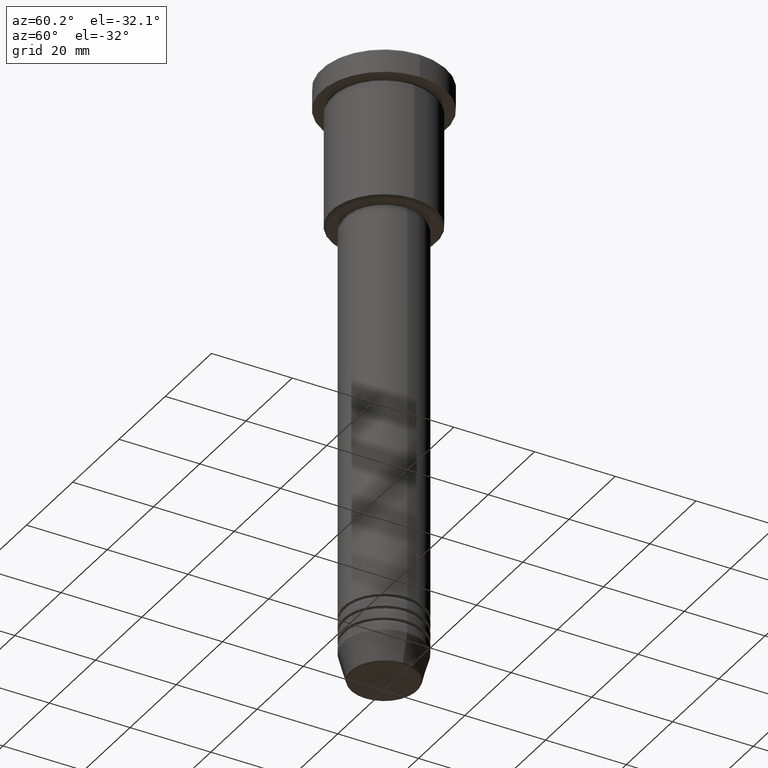
[diagram: clean part render]
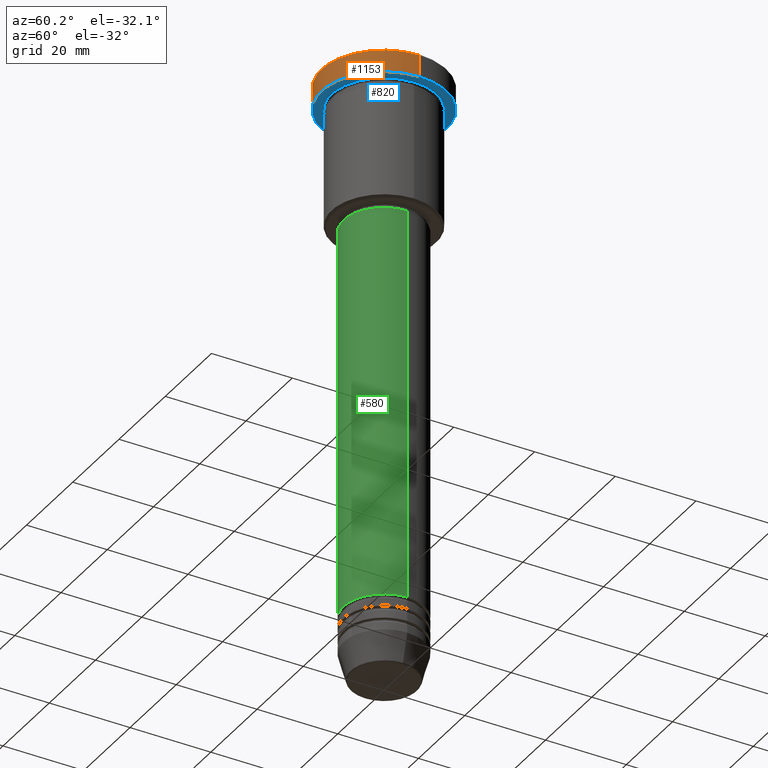
[diagram: same view with three faces highlighted in distinct colors, each labeled with its STEP entity id]
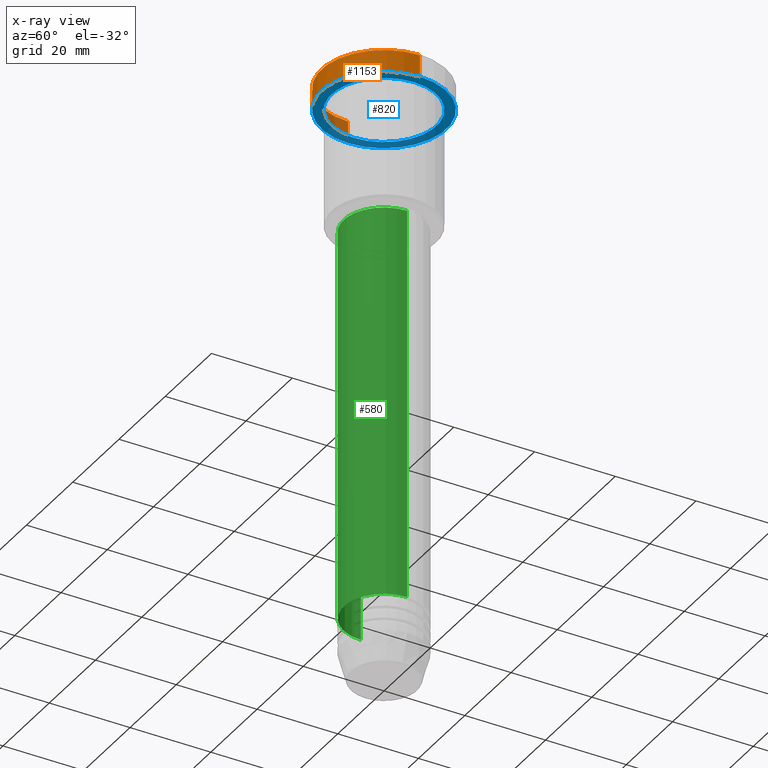
[diagram: x-ray of the same camera — body ghosted, the three highlighted faces saturated]
A machine part, auxiliary view with three faces highlighted in distinct colors.
The next image is the same camera in x-ray (body ghosted, the three faces saturated) — at least one of them is partly hidden behind the body in this view.
Their STEP definitions:

[orange] entity #1153 — the highlighted cylindrical surface (partial cylindrical patch) has radius 15.5 mm, axis along (-0, -0, 1).
#69 = EDGE_CURVE ( 'NONE', #930, #1143, #963, .T. ) ;
#70 = DIRECTION ( 'NONE',  ( 1.000000000000000000, 0.000000000000000000, 0.000000000000000000 ) ) ;
#127 = CIRCLE ( 'NONE', #856, 15.50000000000000000 ) ;
#147 = CIRCLE ( 'NONE', #659, 15.50000000000000000 ) ;
#161 = CYLINDRICAL_SURFACE ( 'NONE', #968, 15.50000000000000000 ) ;
#175 = DIRECTION ( 'NONE',  ( 0.000000000000000000, 0.000000000000000000, -1.000000000000000000 ) ) ;
#283 = VECTOR ( 'NONE', #1071, 1000.000000000000000 ) ;
#301 = CARTESIAN_POINT ( 'NONE',  ( -15.50000000000000000, 1.898202538678397557E-15, 0.000000000000000000 ) ) ;
#328 = EDGE_LOOP ( 'NONE', ( #512, #821, #361, #1170 ) ) ;
#361 = ORIENTED_EDGE ( 'NONE', *, *, #69, .T. ) ;
#415 = CARTESIAN_POINT ( 'NONE',  ( 15.50000000000000000, 0.000000000000000000, -5.999999999999995559 ) ) ;
#425 = DIRECTION ( 'NONE',  ( -0.000000000000000000, -0.000000000000000000, 1.000000000000000000 ) ) ;
#466 = CARTESIAN_POINT ( 'NONE',  ( -15.50000000000000000, 1.898202538678397557E-15, -0.5000000000000264233 ) ) ;
#500 = CARTESIAN_POINT ( 'NONE',  ( 15.50000000000000000, 0.000000000000000000, 0.000000000000000000 ) ) ;
#512 = ORIENTED_EDGE ( 'NONE', *, *, #1002, .F. ) ;
#536 = CARTESIAN_POINT ( 'NONE',  ( 0.000000000000000000, 0.000000000000000000, 0.000000000000000000 ) ) ;
#539 = CARTESIAN_POINT ( 'NONE',  ( 0.000000000000000000, 0.000000000000000000, -5.999999999999995559 ) ) ;
#581 = DIRECTION ( 'NONE',  ( -0.000000000000000000, -0.000000000000000000, 1.000000000000000000 ) ) ;
#606 = EDGE_CURVE ( 'NONE', #1149, #930, #147, .T. ) ;
#631 = DIRECTION ( 'NONE',  ( 1.000000000000000000, 0.000000000000000000, 0.000000000000000000 ) ) ;
#635 = CARTESIAN_POINT ( 'NONE',  ( -15.50000000000000000, 1.898202538678397557E-15, -5.999999999999995559 ) ) ;
#659 = AXIS2_PLACEMENT_3D ( 'NONE', #539, #425, #631 ) ;
#731 = VERTEX_POINT ( 'NONE', #466 ) ;
#761 = LINE ( 'NONE', #301, #878 ) ;
#809 = EDGE_CURVE ( 'NONE', #1143, #731, #127, .T. ) ;
#821 = ORIENTED_EDGE ( 'NONE', *, *, #606, .T. ) ;
#851 = CARTESIAN_POINT ( 'NONE',  ( 0.000000000000000000, 0.000000000000000000, -0.5000000000000264233 ) ) ;
#856 = AXIS2_PLACEMENT_3D ( 'NONE', #851, #175, #1005 ) ;
#878 = VECTOR ( 'NONE', #581, 1000.000000000000000 ) ;
#915 = DIRECTION ( 'NONE',  ( -0.000000000000000000, -0.000000000000000000, 1.000000000000000000 ) ) ;
#930 = VERTEX_POINT ( 'NONE', #415 ) ;
#963 = LINE ( 'NONE', #500, #283 ) ;
#968 = AXIS2_PLACEMENT_3D ( 'NONE', #536, #915, #70 ) ;
#979 = CARTESIAN_POINT ( 'NONE',  ( 15.50000000000000000, 0.000000000000000000, -0.5000000000000264233 ) ) ;
#996 = FACE_OUTER_BOUND ( 'NONE', #328, .T. ) ;
#1002 = EDGE_CURVE ( 'NONE', #1149, #731, #761, .T. ) ;
#1005 = DIRECTION ( 'NONE',  ( 1.000000000000000000, 0.000000000000000000, 0.000000000000000000 ) ) ;
#1071 = DIRECTION ( 'NONE',  ( -0.000000000000000000, -0.000000000000000000, 1.000000000000000000 ) ) ;
#1143 = VERTEX_POINT ( 'NONE', #979 ) ;
#1149 = VERTEX_POINT ( 'NONE', #635 ) ;
#1153 = ADVANCED_FACE ( 'NONE', ( #996 ), #161, .T. ) ;
#1170 = ORIENTED_EDGE ( 'NONE', *, *, #809, .T. ) ;

[blue] entity #820 — the highlighted planar face has unit normal (0, 0, -1).
#9 = FACE_OUTER_BOUND ( 'NONE', #1054, .T. ) ;
#61 = AXIS2_PLACEMENT_3D ( 'NONE', #771, #563, #90 ) ;
#75 = PLANE ( 'NONE',  #1089 ) ;
#90 = DIRECTION ( 'NONE',  ( 1.000000000000000000, 0.000000000000000000, 0.000000000000000000 ) ) ;
#147 = CIRCLE ( 'NONE', #659, 15.50000000000000000 ) ;
#219 = DIRECTION ( 'NONE',  ( -1.000000000000000000, 0.000000000000000000, 0.000000000000000000 ) ) ;
#234 = ORIENTED_EDGE ( 'NONE', *, *, #327, .T. ) ;
#279 = CARTESIAN_POINT ( 'NONE',  ( 0.000000000000000000, 15.50000000000000000, -5.999999999999995559 ) ) ;
#302 = CARTESIAN_POINT ( 'NONE',  ( 0.000000000000000000, 0.000000000000000000, -5.999999999999995559 ) ) ;
#327 = EDGE_CURVE ( 'NONE', #1011, #601, #1015, .T. ) ;
#333 = EDGE_CURVE ( 'NONE', #930, #1149, #640, .T. ) ;
#334 = CARTESIAN_POINT ( 'NONE',  ( -13.00000000000000000, 0.000000000000000000, -5.999999999999994671 ) ) ;
#368 = DIRECTION ( 'NONE',  ( -1.000000000000000000, 0.000000000000000000, -0.000000000000000000 ) ) ;
#409 = DIRECTION ( 'NONE',  ( -0.000000000000000000, -0.000000000000000000, 1.000000000000000000 ) ) ;
#415 = CARTESIAN_POINT ( 'NONE',  ( 15.50000000000000000, 0.000000000000000000, -5.999999999999995559 ) ) ;
#425 = DIRECTION ( 'NONE',  ( -0.000000000000000000, -0.000000000000000000, 1.000000000000000000 ) ) ;
#439 = CIRCLE ( 'NONE', #913, 13.00000000000000000 ) ;
#449 = DIRECTION ( 'NONE',  ( 0.000000000000000000, 0.000000000000000000, -1.000000000000000000 ) ) ;
#460 = FACE_BOUND ( 'NONE', #1164, .T. ) ;
#483 = DIRECTION ( 'NONE',  ( -1.000000000000000000, 0.000000000000000000, 0.000000000000000000 ) ) ;
#497 = CARTESIAN_POINT ( 'NONE',  ( 0.000000000000000000, 0.000000000000000000, -5.999999999999995559 ) ) ;
#539 = CARTESIAN_POINT ( 'NONE',  ( 0.000000000000000000, 0.000000000000000000, -5.999999999999995559 ) ) ;
#540 = EDGE_CURVE ( 'NONE', #601, #1011, #439, .T. ) ;
#563 = DIRECTION ( 'NONE',  ( -0.000000000000000000, -0.000000000000000000, 1.000000000000000000 ) ) ;
#601 = VERTEX_POINT ( 'NONE', #1079 ) ;
#606 = EDGE_CURVE ( 'NONE', #1149, #930, #147, .T. ) ;
#631 = DIRECTION ( 'NONE',  ( 1.000000000000000000, 0.000000000000000000, 0.000000000000000000 ) ) ;
#635 = CARTESIAN_POINT ( 'NONE',  ( -15.50000000000000000, 1.898202538678397557E-15, -5.999999999999995559 ) ) ;
#640 = CIRCLE ( 'NONE', #61, 15.50000000000000000 ) ;
#659 = AXIS2_PLACEMENT_3D ( 'NONE', #539, #425, #631 ) ;
#771 = CARTESIAN_POINT ( 'NONE',  ( 0.000000000000000000, 0.000000000000000000, -5.999999999999995559 ) ) ;
#774 = ORIENTED_EDGE ( 'NONE', *, *, #540, .T. ) ;
#810 = ORIENTED_EDGE ( 'NONE', *, *, #333, .F. ) ;
#820 = ADVANCED_FACE ( 'NONE', ( #460, #9 ), #75, .T. ) ;
#913 = AXIS2_PLACEMENT_3D ( 'NONE', #302, #1047, #219 ) ;
#930 = VERTEX_POINT ( 'NONE', #415 ) ;
#1011 = VERTEX_POINT ( 'NONE', #334 ) ;
#1015 = CIRCLE ( 'NONE', #1132, 13.00000000000000000 ) ;
#1047 = DIRECTION ( 'NONE',  ( -0.000000000000000000, -0.000000000000000000, 1.000000000000000000 ) ) ;
#1054 = EDGE_LOOP ( 'NONE', ( #810, #1101 ) ) ;
#1079 = CARTESIAN_POINT ( 'NONE',  ( 13.00000000000000000, 1.592040838891559095E-15, -5.999999999999994671 ) ) ;
#1089 = AXIS2_PLACEMENT_3D ( 'NONE', #279, #449, #368 ) ;
#1101 = ORIENTED_EDGE ( 'NONE', *, *, #606, .F. ) ;
#1132 = AXIS2_PLACEMENT_3D ( 'NONE', #497, #409, #483 ) ;
#1149 = VERTEX_POINT ( 'NONE', #635 ) ;
#1164 = EDGE_LOOP ( 'NONE', ( #234, #774 ) ) ;

[green] entity #580 — the highlighted cylindrical surface (partial cylindrical patch) has radius 10 mm, axis along (-0, -0, 1).
#2 = VERTEX_POINT ( 'NONE', #905 ) ;
#7 = CARTESIAN_POINT ( 'NONE',  ( 10.00000000000000000, 0.000000000000000000, -37.00000000000001421 ) ) ;
#19 = ORIENTED_EDGE ( 'NONE', *, *, #350, .T. ) ;
#39 = EDGE_CURVE ( 'NONE', #651, #335, #205, .T. ) ;
#49 = DIRECTION ( 'NONE',  ( -0.000000000000000000, -0.000000000000000000, 1.000000000000000000 ) ) ;
#99 = AXIS2_PLACEMENT_3D ( 'NONE', #105, #1040, #224 ) ;
#105 = CARTESIAN_POINT ( 'NONE',  ( 0.000000000000000000, 0.000000000000000000, -37.00000000000001421 ) ) ;
#205 = CIRCLE ( 'NONE', #99, 10.00000000000000000 ) ;
#224 = DIRECTION ( 'NONE',  ( 1.000000000000000000, 0.000000000000000000, 0.000000000000000000 ) ) ;
#244 = ORIENTED_EDGE ( 'NONE', *, *, #1126, .T. ) ;
#263 = CYLINDRICAL_SURFACE ( 'NONE', #895, 10.00000000000000000 ) ;
#284 = CARTESIAN_POINT ( 'NONE',  ( -10.00000000000000000, 1.224646799147353256E-15, 0.000000000000000000 ) ) ;
#305 = AXIS2_PLACEMENT_3D ( 'NONE', #340, #1078, #513 ) ;
#309 = ORIENTED_EDGE ( 'NONE', *, *, #39, .F. ) ;
#335 = VERTEX_POINT ( 'NONE', #7 ) ;
#340 = CARTESIAN_POINT ( 'NONE',  ( 0.000000000000000000, 0.000000000000000000, -134.9999999999999716 ) ) ;
#350 = EDGE_CURVE ( 'NONE', #778, #335, #736, .T. ) ;
#353 = CARTESIAN_POINT ( 'NONE',  ( -10.00000000000000000, 1.224646799147353256E-15, -37.00000000000001421 ) ) ;
#513 = DIRECTION ( 'NONE',  ( 1.000000000000000000, 0.000000000000000000, 0.000000000000000000 ) ) ;
#580 = ADVANCED_FACE ( 'NONE', ( #813 ), #263, .T. ) ;
#636 = CARTESIAN_POINT ( 'NONE',  ( 0.000000000000000000, 0.000000000000000000, 0.000000000000000000 ) ) ;
#651 = VERTEX_POINT ( 'NONE', #353 ) ;
#686 = EDGE_CURVE ( 'NONE', #2, #651, #1095, .T. ) ;
#730 = CARTESIAN_POINT ( 'NONE',  ( 10.00000000000000000, 0.000000000000000000, -134.9999999999999716 ) ) ;
#736 = LINE ( 'NONE', #1034, #894 ) ;
#776 = EDGE_LOOP ( 'NONE', ( #972, #244, #19, #309 ) ) ;
#778 = VERTEX_POINT ( 'NONE', #730 ) ;
#813 = FACE_OUTER_BOUND ( 'NONE', #776, .T. ) ;
#857 = CIRCLE ( 'NONE', #305, 10.00000000000000000 ) ;
#894 = VECTOR ( 'NONE', #1023, 1000.000000000000000 ) ;
#895 = AXIS2_PLACEMENT_3D ( 'NONE', #636, #49, #1157 ) ;
#905 = CARTESIAN_POINT ( 'NONE',  ( -10.00000000000000000, 1.224646799147353256E-15, -134.9999999999999716 ) ) ;
#919 = DIRECTION ( 'NONE',  ( -0.000000000000000000, -0.000000000000000000, 1.000000000000000000 ) ) ;
#972 = ORIENTED_EDGE ( 'NONE', *, *, #686, .F. ) ;
#1023 = DIRECTION ( 'NONE',  ( -0.000000000000000000, -0.000000000000000000, 1.000000000000000000 ) ) ;
#1034 = CARTESIAN_POINT ( 'NONE',  ( 10.00000000000000000, 0.000000000000000000, 0.000000000000000000 ) ) ;
#1040 = DIRECTION ( 'NONE',  ( -0.000000000000000000, -0.000000000000000000, 1.000000000000000000 ) ) ;
#1078 = DIRECTION ( 'NONE',  ( -0.000000000000000000, -0.000000000000000000, 1.000000000000000000 ) ) ;
#1095 = LINE ( 'NONE', #284, #1103 ) ;
#1103 = VECTOR ( 'NONE', #919, 1000.000000000000000 ) ;
#1126 = EDGE_CURVE ( 'NONE', #2, #778, #857, .T. ) ;
#1157 = DIRECTION ( 'NONE',  ( 1.000000000000000000, 0.000000000000000000, 0.000000000000000000 ) ) ;